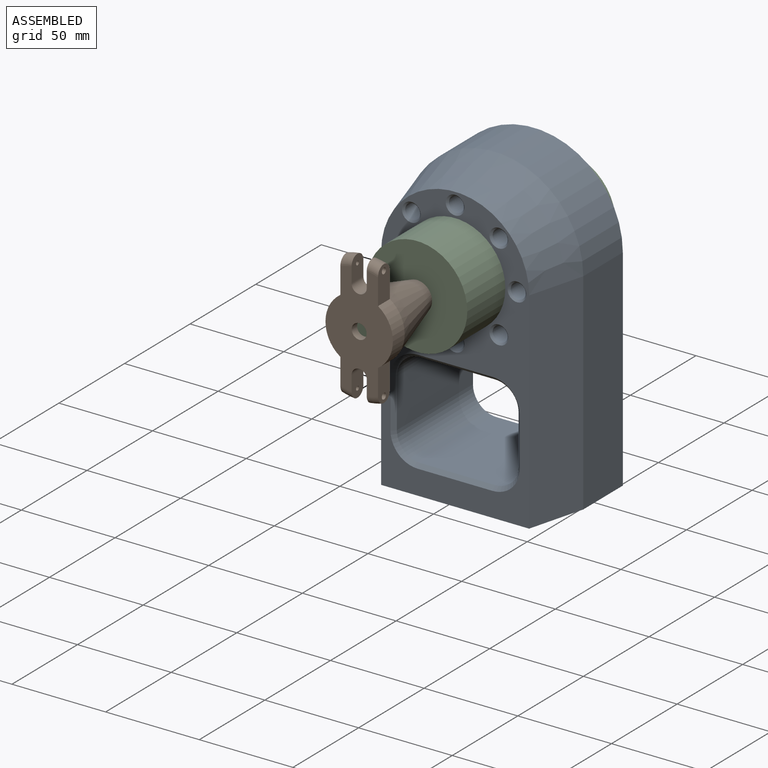
[diagram: assembled view]
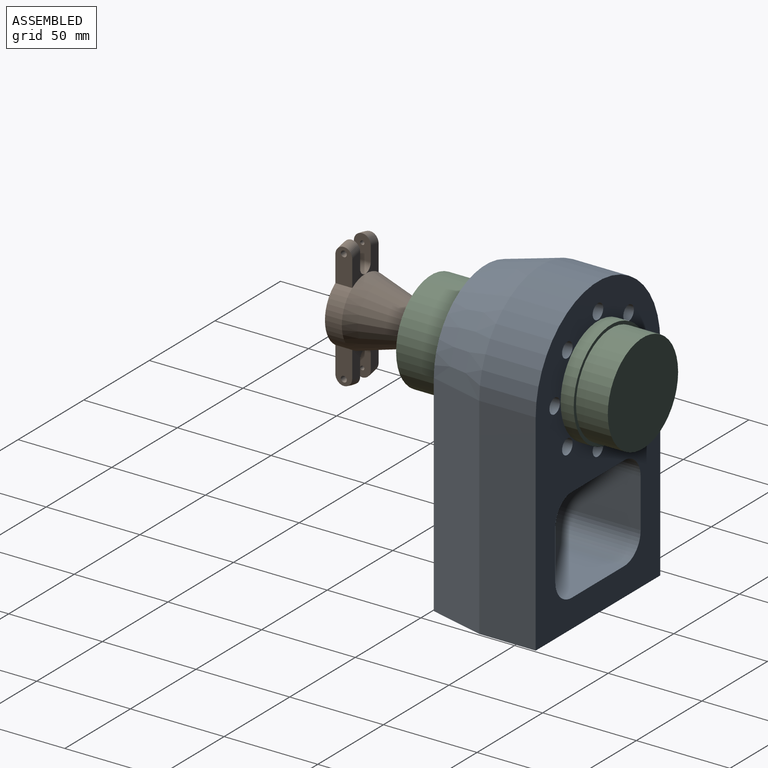
[diagram: assembled view, second angle]
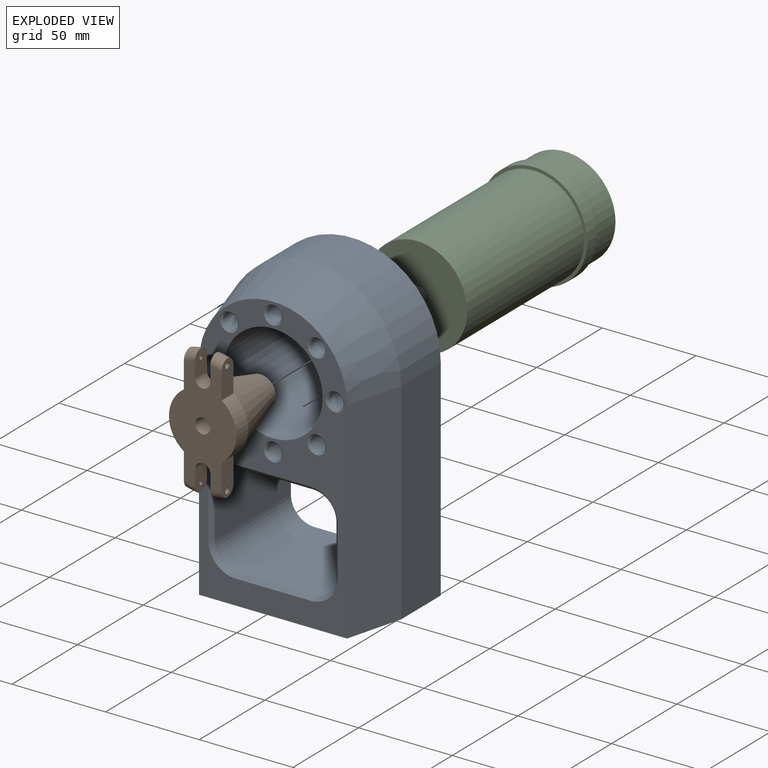
[diagram: exploded view]
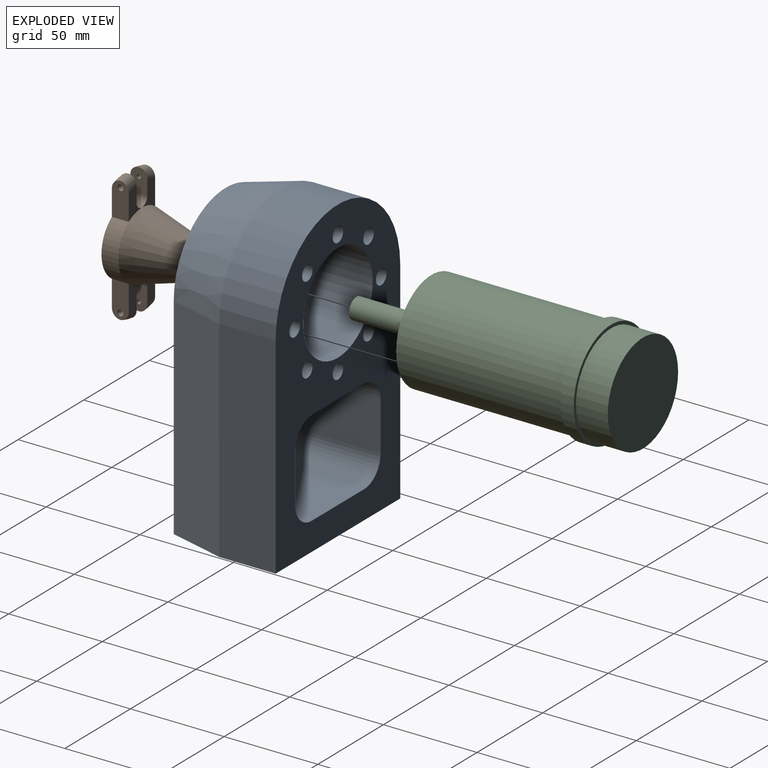
[diagram: exploded view, second angle]
ASSEMBLY  parts=3 mates=3
PART A: 46 faces, bbox 95x60x160 mm
  f0: plane 112.5x30.14mm, normal (-1,0,0), area 3391.2mm2, adj f1,f20,f22,f39
  f1: plane 95x60mm, normal (0,0,-1), area 5347.7mm2, adj f0,f2,f21,f22,f39,f41,f43,f45
  f2: plane 112.5x30.14mm, normal (1,0,0), area 3391.2mm2, adj f1,f20,f22,f41
  f3: cylinder r=12.5mm len=58mm, axis (0,1,0), area 1138.8mm2, adj f4,f10,f22,f33
  f4: plane 58x26mm, normal (-1,0,0), area 1508mm2, adj f3,f5,f22,f35
  f5: cylinder r=12.5mm len=58mm, axis (0,1,0), area 1138.8mm2, adj f4,f6,f22,f37
  f6: plane 58x40mm, normal (0,0,1), area 2320mm2, adj f5,f7,f22,f38
  f7: cylinder r=12.5mm len=58mm, axis (0,1,0), area 1138.8mm2, adj f6,f8,f22,f36
  f8: plane 58x26mm, normal (1,0,0), area 1508mm2, adj f7,f9,f22,f34
  f9: cylinder r=12.5mm len=58mm, axis (0,1,0), area 1138.8mm2, adj f8,f10,f22,f32
  f10: plane 58x40mm, normal (0,0,-1), area 2320mm2, adj f3,f9,f22,f31
  f11: cylinder r=26.5mm len=60mm, axis (0,1,0), area 9990.3mm2, adj f21,f22
  f12: cylinder r=4mm len=59mm, axis (0,1,0), area 1482.8mm2, adj f22,f30
  f13: cylinder r=4mm len=59mm, axis (0,1,0), area 1482.8mm2, adj f22,f29
  f14: cylinder r=4mm len=59mm, axis (0,1,0), area 1482.8mm2, adj f22,f28
  f15: cylinder r=4mm len=59mm, axis (0,1,0), area 1482.8mm2, adj f22,f27
  f16: cylinder r=4mm len=59mm, axis (0,1,0), area 1482.8mm2, adj f22,f26
  f17: cylinder r=4mm len=59mm, axis (0,1,0), area 1482.8mm2, adj f22,f25
  f18: cylinder r=4mm len=59mm, axis (0,1,0), area 1482.8mm2, adj f22,f24
  f19: cylinder r=4mm len=59mm, axis (0,1,0), area 1482.8mm2, adj f22,f23
  f20: cylinder r=47.5mm len=95mm, axis (0,1,0), area 4498.2mm2, adj f0,f2,f22,f40
  f21: plane 152x79mm, normal (0,-1,0), area 4889.3mm2, adj f1,f11,f23,f24,f25,f26,f27,f28
  f22: plane 160x95mm, normal (0,1,0), area 8442.4mm2, adj f0,f1,f2,f3,f4,f5,f6,f7
  f23: cone r=4mm half-angle=45deg, axis (0,-1,0), area 40mm2, adj f19,f21
  f24: cone r=4mm half-angle=45deg, axis (0,-1,0), area 40mm2, adj f18,f21
  f25: cone r=4mm half-angle=45deg, axis (0,-1,0), area 40mm2, adj f17,f21
  f26: cone r=4mm half-angle=45deg, axis (0,-1,0), area 40mm2, adj f16,f21
  f27: cone r=4mm half-angle=45deg, axis (0,-1,0), area 40mm2, adj f15,f21
  f28: cone r=4mm half-angle=45deg, axis (0,-1,0), area 40mm2, adj f14,f21
  f29: cone r=4mm half-angle=45deg, axis (0,-1,0), area 40mm2, adj f13,f21
  f30: cone r=4mm half-angle=45deg, axis (0,-1,0), area 40mm2, adj f12,f21
  f31: plane 40x2mm, normal (0,-0.71,-0.71), area 113.1mm2, adj f10,f21,f32,f33
  f32: cone r=12.5mm half-angle=45deg, axis (0,-1,0), area 60mm2, adj f9,f21,f31,f34
  f33: cone r=12.5mm half-angle=45deg, axis (0,-1,0), area 60mm2, adj f3,f21,f31,f35
  f34: plane 26x2mm, normal (0.71,-0.71,0), area 73.5mm2, adj f8,f21,f32,f36
  f35: plane 26x2mm, normal (-0.71,-0.71,0), area 73.5mm2, adj f4,f21,f33,f37
  f36: cone r=12.5mm half-angle=45deg, axis (0,-1,0), area 60mm2, adj f7,f21,f34,f38
  f37: cone r=12.5mm half-angle=45deg, axis (0,-1,0), area 60mm2, adj f5,f21,f35,f38
  f38: plane 40x2mm, normal (0,-0.71,0.71), area 113.1mm2, adj f6,f21,f36,f37
  f39: plane 112.5x29.86mm, normal (-0.97,-0.26,0), area 3477.3mm2, adj f0,f1,f21,f40
  f40: cone r=39.5mm half-angle=15deg, axis (0,1,0), area 4224.1mm2, adj f20,f21,f39,f41
  f41: plane 112.5x29.86mm, normal (0.97,-0.26,0), area 3477.3mm2, adj f1,f2,f21,f40
  f42: cone r=0mm half-angle=59deg, axis (0,0,-1), area 66.2mm2, adj f43
  f43: cylinder r=4.25mm len=25mm, axis (0,0,-1), area 667.6mm2, adj f1,f42
  f44: cone r=0mm half-angle=59deg, axis (0,0,-1), area 66.2mm2, adj f45
  f45: cylinder r=4.25mm len=25mm, axis (0,0,-1), area 667.6mm2, adj f1,f44
PART B: 28 faces, bbox 44.1x36x70 mm
  f0: plane 15.3x10.05mm, normal (-1,0,0), area 83.1mm2, adj f5,f8,f12,f13,f22
  f1: plane 15.3x10.05mm, normal (-1,0,0), area 83.1mm2, adj f7,f8,f15,f16,f19
  f2: plane 15.3x10.05mm, normal (-1,0,0), area 83.1mm2, adj f8,f11,f12,f14,f20
  f3: plane 15.3x10.05mm, normal (-1,0,0), area 83.1mm2, adj f6,f8,f15,f17,f23
  f4: plane 60.46x36mm, normal (1,0,0), area 1300.2mm2, adj f5,f6,f7,f10,f11,f12,f13,f14
  f5: torus R=30.5mm, axis (1,0,0), area 86.9mm2, adj f0,f4,f13,f22
  f6: torus R=30.5mm, axis (1,0,0), area 86.9mm2, adj f3,f4,f17,f23
  f7: torus R=30.5mm, axis (1,0,0), area 86.9mm2, adj f1,f4,f16,f19
  f8: cone r=18mm half-angle=15.9deg, axis (1,0,0), area 2984.2mm2, adj f0,f1,f2,f3,f9,f18,f21
  f9: plane 16x16mm, normal (-1,0,0), area 150.8mm2, adj f8,f10
  f10: cylinder r=4mm len=44.14mm, axis (-1,0,0), area 1109.3mm2, adj f4,f9
  f11: torus R=30.5mm, axis (1,0,0), area 86.9mm2, adj f2,f4,f14,f20
  f12: cylinder r=4.05mm len=9mm, axis (1,0,0), area 114.5mm2, adj f0,f2,f4,f13,f14
  f13: plane 12.72x9mm, normal (0,-1,0), area 101.9mm2, adj f0,f4,f5,f12,f24
  f14: plane 12.72x9mm, normal (0,1,0), area 97.6mm2, adj f2,f4,f11,f12,f25
  f15: cylinder r=4.05mm len=9mm, axis (1,0,0), area 114.5mm2, adj f1,f3,f4,f16,f17
  f16: plane 12.72x9.01mm, normal (0,1,0), area 97.6mm2, adj f1,f4,f7,f15,f27
  f17: plane 12.72x9.01mm, normal (0,-1,0), area 101.9mm2, adj f3,f4,f6,f15,f26
  f18: cylinder r=18mm len=29.87mm, axis (1,0,0), area 317mm2, adj f4,f8,f19,f20
  f19: plane 18.6x9.01mm, normal (0,-1,0), area 150.2mm2, adj f1,f4,f7,f18,f27
  f20: plane 18.6x9.01mm, normal (0,-1,0), area 150.2mm2, adj f2,f4,f11,f18,f25
  f21: cylinder r=18mm len=29.87mm, axis (1,0,0), area 317mm2, adj f4,f8,f22,f23
  f22: plane 18.6x9.01mm, normal (0,1,0), area 154.4mm2, adj f0,f4,f5,f21,f24
  f23: plane 18.6x9.01mm, normal (0,1,0), area 154.4mm2, adj f3,f4,f6,f21,f26
  f24: cylinder r=1.1mm len=6mm, axis (0,-1,0), area 41.5mm2, adj f13,f22
  f25: cylinder r=1.6mm len=6mm, axis (0,-1,0), area 60.3mm2, adj f14,f20
  f26: cylinder r=1.1mm len=6mm, axis (0,-1,0), area 41.5mm2, adj f17,f23
  f27: cylinder r=1.6mm len=6mm, axis (0,-1,0), area 60.3mm2, adj f16,f19
PART C: 9 faces, bbox 153x57x57 mm
  f0: plane 53.6x53.6mm, normal (-1,0,0), area 2256.4mm2, adj f8
  f1: plane 10.97x10.97mm, normal (1,0,0), area 94.6mm2, adj f2
  f2: cylinder r=5.49mm len=40mm, axis (-1,0,0), area 1379mm2, adj f1,f3
  f3: plane 53.6x53.6mm, normal (1,0,0), area 2161.8mm2, adj f2,f4
  f4: cylinder r=26.8mm len=89mm, axis (-1,0,0), area 14986.7mm2, adj f3,f5
  f5: plane 57x57mm, normal (1,0,0), area 295.3mm2, adj f4,f6
  f6: cylinder r=28.5mm len=57mm, axis (-1,0,0), area 1253.5mm2, adj f5,f7
  f7: plane 57x57mm, normal (-1,0,0), area 295.3mm2, adj f6,f8
  f8: cylinder r=26.8mm len=53.6mm, axis (-1,0,0), area 2862.6mm2, adj f0,f7
PLACE A t=(6.44,15.11,-25.27)mm fixed
PLACE B rot(axis=(0.71,-0.71,0),180deg) t=(7.94,-96.32,28.99)mm
PLACE C rot(axis=(-0.58,0.58,-0.58),120deg) t=(7.94,-24.51,29)mm
MATE parallel A.f11 <-> C.f2  axis (0,1,0) through (7.94,15.11,29)mm
MATE cylindrical A.f11 <-> C.f2  axis (0,1,0) through (7.94,15.11,29)mm
MATE cylindrical B.f5 <-> C.f2  axis (0,1,0) through (7.94,-73.89,29)mm
